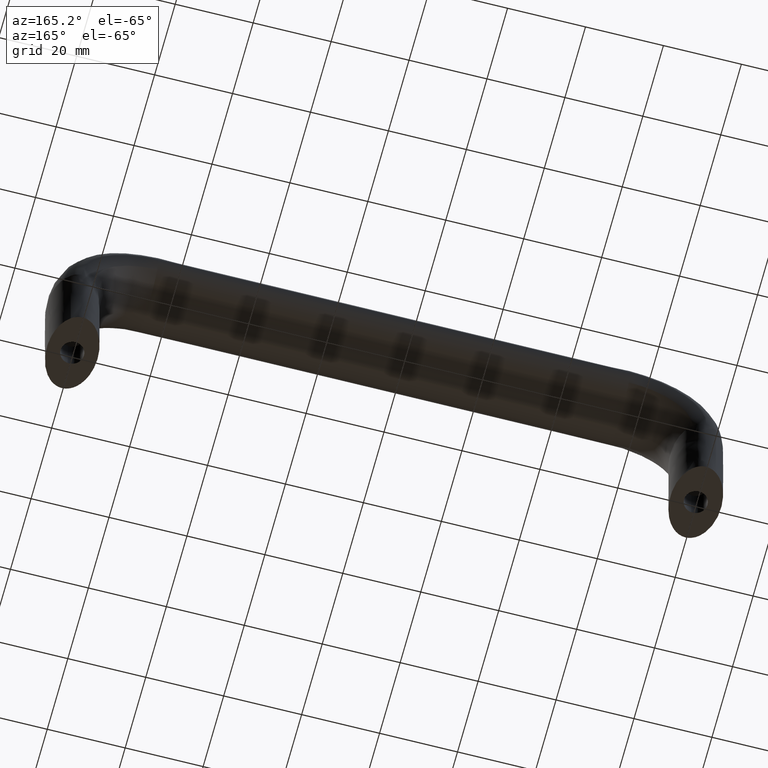
[diagram: clean part render]
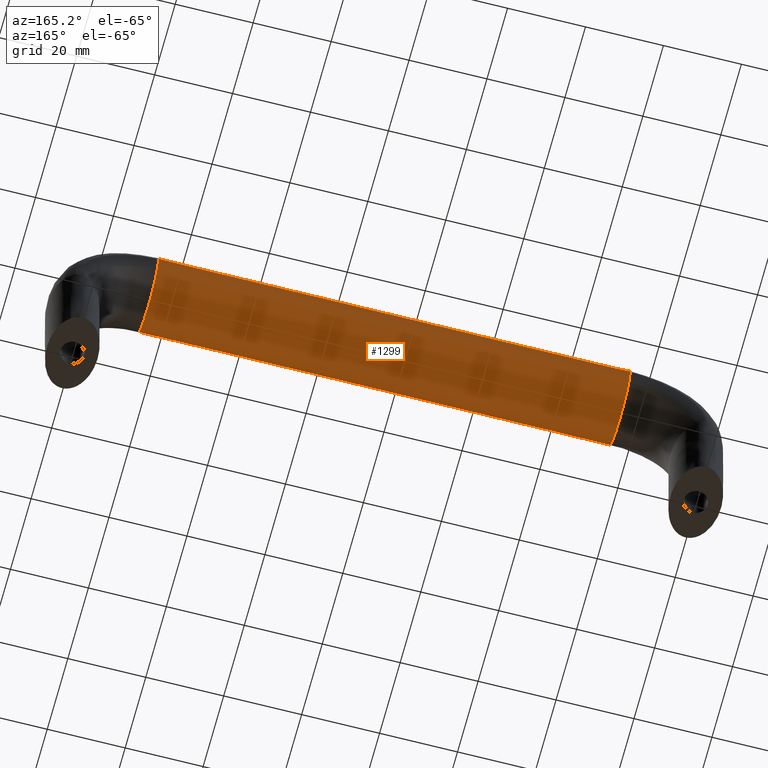
[diagram: same view with one face highlighted and labeled with its STEP entity id]
A machine part, auxiliary view. The second image highlights one B-rep face of the part: STEP entity #1299.
In plain terms, the highlighted face is a freeform B-spline surface patch.
Its self-contained STEP definition (entity closure, byte-faithful):
#750=CARTESIAN_POINT('',(140.500007000000010,8.755444309404465,41.370790612720363));
#751=VERTEX_POINT('',#750);
#765=CARTESIAN_POINT('',(140.500007000000010,10.0,44.500007999999852));
#766=VERTEX_POINT('',#765);
#767=CARTESIAN_POINT('',(140.500007000000010,8.755444309404465,41.370790612720363));
#768=CARTESIAN_POINT('',(140.500007000000010,9.558561397163913,42.326129193318721));
#769=CARTESIAN_POINT('',(140.500007000000010,10.0,43.410922546728408));
#770=CARTESIAN_POINT('',(140.500007000000010,10.0,44.500007999999852));
#771=B_SPLINE_CURVE_WITH_KNOTS('',3,(#767,#768,#769,#770),.UNSPECIFIED.,.F.,.U.,(4,4),(0.419999999998017,0.500000000000000),.UNSPECIFIED.);
#772=EDGE_CURVE('',#751,#766,#771,.T.);
#774=CARTESIAN_POINT('',(140.500007000000010,9.039503756675209,47.265149685667708));
#775=VERTEX_POINT('',#774);
#776=CARTESIAN_POINT('',(140.500007000000010,10.0,44.500007999999852));
#777=CARTESIAN_POINT('',(140.500007000000010,10.0,45.452957771797188));
#778=CARTESIAN_POINT('',(140.500007000000010,9.662023569572522,46.402621404636598));
#779=CARTESIAN_POINT('',(140.500007000000010,9.039503756675209,47.265149685667708));
#780=B_SPLINE_CURVE_WITH_KNOTS('',3,(#776,#777,#778,#779),.UNSPECIFIED.,.F.,.U.,(4,4),(0.500000000000000,0.570000000015311),.UNSPECIFIED.);
#781=EDGE_CURVE('',#766,#775,#780,.T.);
#783=CARTESIAN_POINT('',(140.500007000000010,-10.0,44.500007999999852));
#784=VERTEX_POINT('',#783);
#891=CARTESIAN_POINT('',(140.500007000000010,-10.0,44.500007999999852));
#892=CARTESIAN_POINT('',(140.500007000000010,-10.0,42.798311979305403));
#893=CARTESIAN_POINT('',(140.500007000000010,-8.922269036098131,41.107094718038553));
#894=CARTESIAN_POINT('',(140.500007000000010,-5.219866587632820,38.700533126536087));
#895=CARTESIAN_POINT('',(140.500007000000010,-2.617993877991495,38.000007999999852));
#896=CARTESIAN_POINT('',(140.500007000000010,2.617993877991495,38.000007999999852));
#897=CARTESIAN_POINT('',(140.500007000000010,5.219866587632830,38.700533126536087));
#898=CARTESIAN_POINT('',(140.500007000000010,7.737500252559872,40.336995008738683));
#899=CARTESIAN_POINT('',(140.500007000000010,8.303690947524229,40.833412661115283));
#900=CARTESIAN_POINT('',(140.500007000000010,8.755444309404465,41.370790612720363));
#901=B_SPLINE_CURVE_WITH_KNOTS('',3,(#891,#892,#893,#894,#895,#896,#897,#898,#899,#900),.UNSPECIFIED.,.F.,.U.,(4,2,2,2,4),(0.0,0.125000000000000,0.250000000000000,0.375000000000000,0.419999999998017),.UNSPECIFIED.);
#902=EDGE_CURVE('',#784,#751,#901,.T.);
#982=CARTESIAN_POINT('',(19.500000000000000,9.039503756675209,47.265141685667807));
#983=VERTEX_POINT('',#982);
#984=CARTESIAN_POINT('',(19.500000000000000,9.039503756675209,47.265141685667807));
#985=CARTESIAN_POINT('',(22.020797964139032,9.039503756879462,47.274604278912413));
#986=CARTESIAN_POINT('',(24.541666958346301,9.039503756879462,47.265149685384714));
#987=CARTESIAN_POINT('',(29.583333916653761,9.039503756879462,47.265149685384714));
#988=CARTESIAN_POINT('',(32.104167395828803,9.039503756879462,47.265149685384714));
#989=CARTESIAN_POINT('',(39.666667833342501,9.039503756879462,47.265149685384714));
#990=CARTESIAN_POINT('',(44.708334791657499,9.039503756879462,47.265149685384714));
#991=CARTESIAN_POINT('',(59.833335666684903,9.039503756879462,47.265149685384714));
#992=CARTESIAN_POINT('',(69.916669583390004,9.039503756879462,47.265149685384714));
#993=CARTESIAN_POINT('',(90.083337416610007,9.039503756879462,47.265149685384714));
#994=CARTESIAN_POINT('',(100.166671333465000,9.039503756879462,47.265149685384714));
#995=CARTESIAN_POINT('',(115.291672208267600,9.039503756879462,47.265149685384714));
#996=CARTESIAN_POINT('',(120.333339166627600,9.039503756879462,47.265149685384714));
#997=CARTESIAN_POINT('',(127.895839604186190,9.039503756879462,47.265149685384714));
#998=CARTESIAN_POINT('',(130.416673083313810,9.039503756879462,47.265149685384714));
#999=CARTESIAN_POINT('',(135.458340041686200,9.039503756879462,47.265149685384714));
#1000=CARTESIAN_POINT('',(137.979209089564510,9.039503756879462,47.274612278710521));
#1001=CARTESIAN_POINT('',(140.500007000000010,9.039503756675209,47.265149685667708));
#1002=B_SPLINE_CURVE_WITH_KNOTS('',3,(#984,#985,#986,#987,#988,#989,#990,#991,#992,#993,#994,#995,#996,#997,#998,#999,#1000,#1001),.UNSPECIFIED.,.F.,.U.,(4,2,2,2,2,2,2,2,4),(0.239517237523622,0.272077582833169,0.304637928142717,0.369758618761811,0.500000000000000,0.630241381238189,0.695362071857284,0.727922417166831,0.760482762476378),.UNSPECIFIED.);
#1003=EDGE_CURVE('',#983,#775,#1002,.T.);
#1005=CARTESIAN_POINT('',(19.500000000000000,-10.0,44.499999999999950));
#1006=VERTEX_POINT('',#1005);
#1020=CARTESIAN_POINT('',(19.500000000000000,-10.0,44.499999999999950));
#1021=CARTESIAN_POINT('',(22.020792714456480,-10.0,44.510134661153558));
#1022=CARTESIAN_POINT('',(24.541666958346301,-10.0,44.500007999999852));
#1023=CARTESIAN_POINT('',(29.583333916653750,-10.0,44.500007999999852));
#1024=CARTESIAN_POINT('',(32.104167395828803,-10.0,44.500007999999852));
#1025=CARTESIAN_POINT('',(39.666667833342501,-10.0,44.500007999999852));
#1026=CARTESIAN_POINT('',(44.708334791657499,-10.0,44.500007999999852));
#1027=CARTESIAN_POINT('',(59.833335666684903,-10.0,44.500007999999852));
#1028=CARTESIAN_POINT('',(69.916669583390004,-10.0,44.500007999999852));
#1029=CARTESIAN_POINT('',(90.083337416610007,-10.0,44.500007999999852));
#1030=CARTESIAN_POINT('',(100.166671333465000,-10.0,44.500007999999852));
#1031=CARTESIAN_POINT('',(115.291672208267600,-10.0,44.500007999999852));
#1032=CARTESIAN_POINT('',(120.333339166627600,-10.0,44.500007999999852));
#1033=CARTESIAN_POINT('',(127.895839604186190,-10.0,44.500007999999852));
#1034=CARTESIAN_POINT('',(130.416673083313810,-10.0,44.500007999999852));
#1035=CARTESIAN_POINT('',(135.458340041686200,-10.0,44.500007999999852));
#1036=CARTESIAN_POINT('',(137.979214343062890,-10.0,44.510142660921787));
#1037=CARTESIAN_POINT('',(140.500007000000010,-10.0,44.500007999999852));
#1038=B_SPLINE_CURVE_WITH_KNOTS('',3,(#1020,#1021,#1022,#1023,#1024,#1025,#1026,#1027,#1028,#1029,#1030,#1031,#1032,#1033,#1034,#1035,#1036,#1037),.UNSPECIFIED.,.F.,.U.,(4,2,2,2,2,2,2,2,4),(0.239517237523622,0.272077582833169,0.304637928142717,0.369758618761811,0.500000000000000,0.630241381238189,0.695362071857284,0.727922417166831,0.760482762476378),.UNSPECIFIED.);
#1039=EDGE_CURVE('',#1006,#784,#1038,.T.);
#1044=CARTESIAN_POINT('',(19.500000000000000,-10.0,44.499999999999950));
#1045=CARTESIAN_POINT('',(19.500000000000000,-10.0,42.798303979305501));
#1046=CARTESIAN_POINT('',(19.500000000000000,-8.922269036098131,41.107086718038651));
#1047=CARTESIAN_POINT('',(19.500000000000000,-5.219866587632820,38.700525126536199));
#1048=CARTESIAN_POINT('',(19.500000000000000,-2.617993877991495,38.0));
#1049=CARTESIAN_POINT('',(19.500000000000000,2.617993877991495,38.0));
#1050=CARTESIAN_POINT('',(19.500000000000000,5.219866587632830,38.700525126536199));
#1051=CARTESIAN_POINT('',(19.500000000000000,8.922269036098131,41.107086718038651));
#1052=CARTESIAN_POINT('',(19.500000000000000,10.0,42.798303979305501));
#1053=CARTESIAN_POINT('',(19.500000000000000,10.0,45.452949771588841));
#1054=CARTESIAN_POINT('',(19.500000000000000,9.662023569720375,46.402613404221249));
#1055=CARTESIAN_POINT('',(19.500000000000000,9.039503756879462,47.265141685384812));
#1056=CARTESIAN_POINT('',(22.020792714456480,-10.0,44.510134661153558));
#1057=CARTESIAN_POINT('',(22.020789183956449,-10.0,42.808878013987297));
#1058=CARTESIAN_POINT('',(22.020784900336100,-8.922269036098131,41.118159895065801));
#1059=CARTESIAN_POINT('',(22.020777641944150,-5.219866587632820,38.712396230517449));
#1060=CARTESIAN_POINT('',(22.020775220870551,-2.617993877991495,38.012125576242198));
#1061=CARTESIAN_POINT('',(22.020775220870551,2.617993877991495,38.012125576242198));
#1062=CARTESIAN_POINT('',(22.020777641944051,5.219866587632830,38.712396230527737));
#1063=CARTESIAN_POINT('',(22.020784900336150,8.922269036098131,41.118159895056202));
#1064=CARTESIAN_POINT('',(22.020789183956449,10.0,42.808878013987297));
#1065=CARTESIAN_POINT('',(22.020794691536491,10.0,45.462838383566663));
#1066=CARTESIAN_POINT('',(22.020796469201560,9.662023569720375,46.412273271569738));
#1067=CARTESIAN_POINT('',(22.020797964139032,9.039503756879462,47.274604278912413));
#1068=CARTESIAN_POINT('',(24.541666958346301,-10.0,44.500007999999852));
#1069=CARTESIAN_POINT('',(24.541666958346301,-10.0,42.798311979305403));
#1070=CARTESIAN_POINT('',(24.541666958346301,-8.922269036098131,41.107094718038553));
#1071=CARTESIAN_POINT('',(24.541666958346301,-5.219866587632820,38.700533126536087));
#1072=CARTESIAN_POINT('',(24.541666958346301,-2.617993877991495,38.000007999999852));
#1073=CARTESIAN_POINT('',(24.541666958346301,2.617993877991495,38.000007999999852));
#1074=CARTESIAN_POINT('',(24.541666958346301,5.219866587632830,38.700533126536087));
#1075=CARTESIAN_POINT('',(24.541666958346301,8.922269036098131,41.107094718038553));
#1076=CARTESIAN_POINT('',(24.541666958346301,10.0,42.798311979305403));
#1077=CARTESIAN_POINT('',(24.541666958346301,10.0,45.452957771588743));
#1078=CARTESIAN_POINT('',(24.541666958346301,9.662023569720375,46.402621404221158));
#1079=CARTESIAN_POINT('',(24.541666958346301,9.039503756879462,47.265149685384714));
#1080=CARTESIAN_POINT('',(29.583333916653750,-10.0,44.500007999999852));
#1081=CARTESIAN_POINT('',(29.583333916653750,-10.0,42.798311979305403));
#1082=CARTESIAN_POINT('',(29.583333916653750,-8.922269036098131,41.107094718038553));
#1083=CARTESIAN_POINT('',(29.583333916653750,-5.219866587632820,38.700533126536087));
#1084=CARTESIAN_POINT('',(29.583333916653750,-2.617993877991495,38.000007999999852));
#1085=CARTESIAN_POINT('',(29.583333916653750,2.617993877991495,38.000007999999852));
#1086=CARTESIAN_POINT('',(29.583333916653750,5.219866587632830,38.700533126536087));
#1087=CARTESIAN_POINT('',(29.583333916653750,8.922269036098131,41.107094718038553));
#1088=CARTESIAN_POINT('',(29.583333916653750,10.0,42.798311979305403));
#1089=CARTESIAN_POINT('',(29.583333916653750,10.0,45.452957771588743));
#1090=CARTESIAN_POINT('',(29.583333916653761,9.662023569720375,46.402621404221158));
#1091=CARTESIAN_POINT('',(29.583333916653761,9.039503756879462,47.265149685384714));
#1092=CARTESIAN_POINT('',(32.104167395828803,-10.0,44.500007999999852));
#1093=CARTESIAN_POINT('',(32.104167395828803,-10.0,42.798311979305403));
#1094=CARTESIAN_POINT('',(32.104167395828803,-8.922269036098131,41.107094718038553));
#1095=CARTESIAN_POINT('',(32.104167395828803,-5.219866587632820,38.700533126536087));
#1096=CARTESIAN_POINT('',(32.104167395828803,-2.617993877991495,38.000007999999852));
#1097=CARTESIAN_POINT('',(32.104167395828803,2.617993877991495,38.000007999999852));
#1098=CARTESIAN_POINT('',(32.104167395828803,5.219866587632830,38.700533126536087));
#1099=CARTESIAN_POINT('',(32.104167395828803,8.922269036098131,41.107094718038553));
#1100=CARTESIAN_POINT('',(32.104167395828803,10.0,42.798311979305403));
#1101=CARTESIAN_POINT('',(32.104167395828803,10.0,45.452957771588743));
#1102=CARTESIAN_POINT('',(32.104167395828803,9.662023569720375,46.402621404221158));
#1103=CARTESIAN_POINT('',(32.104167395828803,9.039503756879462,47.265149685384714));
#1104=CARTESIAN_POINT('',(39.666667833342501,-10.0,44.500007999999852));
#1105=CARTESIAN_POINT('',(39.666667833342501,-10.0,42.798311979305403));
#1106=CARTESIAN_POINT('',(39.666667833342501,-8.922269036098131,41.107094718038553));
#1107=CARTESIAN_POINT('',(39.666667833342501,-5.219866587632820,38.700533126536087));
#1108=CARTESIAN_POINT('',(39.666667833342501,-2.617993877991495,38.000007999999852));
#1109=CARTESIAN_POINT('',(39.666667833342501,2.617993877991495,38.000007999999852));
#1110=CARTESIAN_POINT('',(39.666667833342501,5.219866587632830,38.700533126536087));
#1111=CARTESIAN_POINT('',(39.666667833342501,8.922269036098131,41.107094718038553));
#1112=CARTESIAN_POINT('',(39.666667833342501,10.0,42.798311979305403));
#1113=CARTESIAN_POINT('',(39.666667833342501,10.0,45.452957771588743));
#1114=CARTESIAN_POINT('',(39.666667833342501,9.662023569720375,46.402621404221158));
#1115=CARTESIAN_POINT('',(39.666667833342501,9.039503756879462,47.265149685384714));
#1116=CARTESIAN_POINT('',(44.708334791657499,-10.0,44.500007999999852));
#1117=CARTESIAN_POINT('',(44.708334791657499,-10.0,42.798311979305403));
#1118=CARTESIAN_POINT('',(44.708334791657499,-8.922269036098131,41.107094718038553));
#1119=CARTESIAN_POINT('',(44.708334791657499,-5.219866587632820,38.700533126536087));
#1120=CARTESIAN_POINT('',(44.708334791657499,-2.617993877991495,38.000007999999852));
#1121=CARTESIAN_POINT('',(44.708334791657499,2.617993877991495,38.000007999999852));
#1122=CARTESIAN_POINT('',(44.708334791657499,5.219866587632830,38.700533126536087));
#1123=CARTESIAN_POINT('',(44.708334791657499,8.922269036098131,41.107094718038553));
#1124=CARTESIAN_POINT('',(44.708334791657499,10.0,42.798311979305403));
#1125=CARTESIAN_POINT('',(44.708334791657499,10.0,45.452957771588743));
#1126=CARTESIAN_POINT('',(44.708334791657499,9.662023569720375,46.402621404221158));
#1127=CARTESIAN_POINT('',(44.708334791657492,9.039503756879462,47.265149685384714));
#1128=CARTESIAN_POINT('',(59.833335666684903,-10.0,44.500007999999852));
#1129=CARTESIAN_POINT('',(59.833335666684903,-10.0,42.798311979305403));
#1130=CARTESIAN_POINT('',(59.833335666684903,-8.922269036098131,41.107094718038553));
#1131=CARTESIAN_POINT('',(59.833335666684903,-5.219866587632820,38.700533126536087));
#1132=CARTESIAN_POINT('',(59.833335666684903,-2.617993877991495,38.000007999999852));
#1133=CARTESIAN_POINT('',(59.833335666684903,2.617993877991495,38.000007999999852));
#1134=CARTESIAN_POINT('',(59.833335666684903,5.219866587632830,38.700533126536087));
#1135=CARTESIAN_POINT('',(59.833335666684903,8.922269036098131,41.107094718038553));
#1136=CARTESIAN_POINT('',(59.833335666684903,10.0,42.798311979305403));
#1137=CARTESIAN_POINT('',(59.833335666684903,10.0,45.452957771588743));
#1138=CARTESIAN_POINT('',(59.833335666684903,9.662023569720375,46.402621404221158));
#1139=CARTESIAN_POINT('',(59.833335666684903,9.039503756879462,47.265149685384714));
#1140=CARTESIAN_POINT('',(69.916669583390004,-10.0,44.500007999999852));
#1141=CARTESIAN_POINT('',(69.916669583390004,-10.0,42.798311979305403));
#1142=CARTESIAN_POINT('',(69.916669583390004,-8.922269036098131,41.107094718038553));
#1143=CARTESIAN_POINT('',(69.916669583390004,-5.219866587632820,38.700533126536087));
#1144=CARTESIAN_POINT('',(69.916669583390004,-2.617993877991495,38.000007999999852));
#1145=CARTESIAN_POINT('',(69.916669583390004,2.617993877991495,38.000007999999852));
#1146=CARTESIAN_POINT('',(69.916669583390004,5.219866587632830,38.700533126536087));
#1147=CARTESIAN_POINT('',(69.916669583390004,8.922269036098131,41.107094718038553));
#1148=CARTESIAN_POINT('',(69.916669583390004,10.0,42.798311979305403));
#1149=CARTESIAN_POINT('',(69.916669583390004,10.0,45.452957771588743));
#1150=CARTESIAN_POINT('',(69.916669583390004,9.662023569720375,46.402621404221158));
#1151=CARTESIAN_POINT('',(69.916669583390004,9.039503756879462,47.265149685384714));
#1152=CARTESIAN_POINT('',(90.083337416610007,-10.0,44.500007999999852));
#1153=CARTESIAN_POINT('',(90.083337416610007,-10.0,42.798311979305403));
#1154=CARTESIAN_POINT('',(90.083337416610007,-8.922269036098131,41.107094718038553));
#1155=CARTESIAN_POINT('',(90.083337416610007,-5.219866587632820,38.700533126536087));
#1156=CARTESIAN_POINT('',(90.083337416610007,-2.617993877991495,38.000007999999852));
#1157=CARTESIAN_POINT('',(90.083337416610007,2.617993877991495,38.000007999999852));
#1158=CARTESIAN_POINT('',(90.083337416610007,5.219866587632830,38.700533126536087));
#1159=CARTESIAN_POINT('',(90.083337416610007,8.922269036098131,41.107094718038553));
#1160=CARTESIAN_POINT('',(90.083337416610007,10.0,42.798311979305403));
#1161=CARTESIAN_POINT('',(90.083337416610007,10.0,45.452957771588743));
#1162=CARTESIAN_POINT('',(90.083337416610007,9.662023569720375,46.402621404221158));
#1163=CARTESIAN_POINT('',(90.083337416609993,9.039503756879462,47.265149685384714));
#1164=CARTESIAN_POINT('',(100.166671333465000,-10.0,44.500007999999852));
#1165=CARTESIAN_POINT('',(100.166671333465000,-10.0,42.798311979305403));
#1166=CARTESIAN_POINT('',(100.166671333465000,-8.922269036098131,41.107094718038553));
#1167=CARTESIAN_POINT('',(100.166671333465000,-5.219866587632820,38.700533126536087));
#1168=CARTESIAN_POINT('',(100.166671333465000,-2.617993877991495,38.000007999999852));
#1169=CARTESIAN_POINT('',(100.166671333465000,2.617993877991495,38.000007999999852));
#1170=CARTESIAN_POINT('',(100.166671333465000,5.219866587632830,38.700533126536087));
#1171=CARTESIAN_POINT('',(100.166671333465000,8.922269036098131,41.107094718038553));
#1172=CARTESIAN_POINT('',(100.166671333465000,10.0,42.798311979305403));
#1173=CARTESIAN_POINT('',(100.166671333465000,10.0,45.452957771588743));
#1174=CARTESIAN_POINT('',(100.166671333465000,9.662023569720375,46.402621404221158));
#1175=CARTESIAN_POINT('',(100.166671333465000,9.039503756879462,47.265149685384714));
#1176=CARTESIAN_POINT('',(115.291672208267600,-10.0,44.500007999999852));
#1177=CARTESIAN_POINT('',(115.291672208267600,-10.0,42.798311979305403));
#1178=CARTESIAN_POINT('',(115.291672208267600,-8.922269036098131,41.107094718038553));
#1179=CARTESIAN_POINT('',(115.291672208267600,-5.219866587632820,38.700533126536087));
#1180=CARTESIAN_POINT('',(115.291672208267600,-2.617993877991495,38.000007999999852));
#1181=CARTESIAN_POINT('',(115.291672208267600,2.617993877991495,38.000007999999852));
#1182=CARTESIAN_POINT('',(115.291672208267600,5.219866587632830,38.700533126536087));
#1183=CARTESIAN_POINT('',(115.291672208267600,8.922269036098131,41.107094718038553));
#1184=CARTESIAN_POINT('',(115.291672208267600,10.0,42.798311979305403));
#1185=CARTESIAN_POINT('',(115.291672208267600,10.0,45.452957771588743));
#1186=CARTESIAN_POINT('',(115.291672208267600,9.662023569720375,46.402621404221158));
#1187=CARTESIAN_POINT('',(115.291672208267600,9.039503756879462,47.265149685384714));
#1188=CARTESIAN_POINT('',(120.333339166627600,-10.0,44.500007999999852));
#1189=CARTESIAN_POINT('',(120.333339166627600,-10.0,42.798311979305403));
#1190=CARTESIAN_POINT('',(120.333339166627600,-8.922269036098131,41.107094718038553));
#1191=CARTESIAN_POINT('',(120.333339166627600,-5.219866587632820,38.700533126536087));
#1192=CARTESIAN_POINT('',(120.333339166627600,-2.617993877991495,38.000007999999852));
#1193=CARTESIAN_POINT('',(120.333339166627600,2.617993877991495,38.000007999999852));
#1194=CARTESIAN_POINT('',(120.333339166627600,5.219866587632830,38.700533126536087));
#1195=CARTESIAN_POINT('',(120.333339166627600,8.922269036098131,41.107094718038553));
#1196=CARTESIAN_POINT('',(120.333339166627600,10.0,42.798311979305403));
#1197=CARTESIAN_POINT('',(120.333339166627600,10.0,45.452957771588743));
#1198=CARTESIAN_POINT('',(120.333339166627600,9.662023569720375,46.402621404221158));
#1199=CARTESIAN_POINT('',(120.333339166627600,9.039503756879462,47.265149685384714));
#1200=CARTESIAN_POINT('',(127.895839604186190,-10.0,44.500007999999852));
#1201=CARTESIAN_POINT('',(127.895839604186190,-10.0,42.798311979305403));
#1202=CARTESIAN_POINT('',(127.895839604186190,-8.922269036098131,41.107094718038553));
#1203=CARTESIAN_POINT('',(127.895839604186190,-5.219866587632820,38.700533126536087));
#1204=CARTESIAN_POINT('',(127.895839604186190,-2.617993877991495,38.000007999999852));
#1205=CARTESIAN_POINT('',(127.895839604186190,2.617993877991495,38.000007999999852));
#1206=CARTESIAN_POINT('',(127.895839604186190,5.219866587632830,38.700533126536087));
#1207=CARTESIAN_POINT('',(127.895839604186190,8.922269036098131,41.107094718038553));
#1208=CARTESIAN_POINT('',(127.895839604186190,10.0,42.798311979305403));
#1209=CARTESIAN_POINT('',(127.895839604186190,10.0,45.452957771588743));
#1210=CARTESIAN_POINT('',(127.895839604186190,9.662023569720375,46.402621404221158));
#1211=CARTESIAN_POINT('',(127.895839604186190,9.039503756879462,47.265149685384714));
#1212=CARTESIAN_POINT('',(130.416673083313810,-10.0,44.500007999999852));
#1213=CARTESIAN_POINT('',(130.416673083313810,-10.0,42.798311979305403));
#1214=CARTESIAN_POINT('',(130.416673083313810,-8.922269036098131,41.107094718038553));
#1215=CARTESIAN_POINT('',(130.416673083313810,-5.219866587632820,38.700533126536087));
#1216=CARTESIAN_POINT('',(130.416673083313810,-2.617993877991495,38.000007999999852));
#1217=CARTESIAN_POINT('',(130.416673083313810,2.617993877991495,38.000007999999852));
#1218=CARTESIAN_POINT('',(130.416673083313810,5.219866587632830,38.700533126536087));
#1219=CARTESIAN_POINT('',(130.416673083313810,8.922269036098131,41.107094718038553));
#1220=CARTESIAN_POINT('',(130.416673083313810,10.0,42.798311979305403));
#1221=CARTESIAN_POINT('',(130.416673083313810,10.0,45.452957771588743));
#1222=CARTESIAN_POINT('',(130.416673083313810,9.662023569720375,46.402621404221158));
#1223=CARTESIAN_POINT('',(130.416673083313810,9.039503756879462,47.265149685384714));
#1224=CARTESIAN_POINT('',(135.458340041686200,-10.0,44.500007999999852));
#1225=CARTESIAN_POINT('',(135.458340041686200,-10.0,42.798311979305403));
#1226=CARTESIAN_POINT('',(135.458340041686200,-8.922269036098131,41.107094718038553));
#1227=CARTESIAN_POINT('',(135.458340041686200,-5.219866587632820,38.700533126536087));
#1228=CARTESIAN_POINT('',(135.458340041686200,-2.617993877991495,38.000007999999852));
#1229=CARTESIAN_POINT('',(135.458340041686200,2.617993877991495,38.000007999999852));
#1230=CARTESIAN_POINT('',(135.458340041686200,5.219866587632830,38.700533126536087));
#1231=CARTESIAN_POINT('',(135.458340041686200,8.922269036098131,41.107094718038553));
#1232=CARTESIAN_POINT('',(135.458340041686200,10.0,42.798311979305403));
#1233=CARTESIAN_POINT('',(135.458340041686200,10.0,45.452957771588743));
#1234=CARTESIAN_POINT('',(135.458340041686200,9.662023569720375,46.402621404221158));
#1235=CARTESIAN_POINT('',(135.458340041686200,9.039503756879462,47.265149685384714));
#1236=CARTESIAN_POINT('',(137.979214343062890,-10.0,44.510142660921787));
#1237=CARTESIAN_POINT('',(137.979217876057590,-10.0,42.808886013735503));
#1238=CARTESIAN_POINT('',(137.979222162512000,-8.922269036098131,41.118167894789700));
#1239=CARTESIAN_POINT('',(137.979229425434600,-5.219866587632820,38.712404230200100));
#1240=CARTESIAN_POINT('',(137.979231847953000,-2.617993877991495,38.012133575911157));
#1241=CARTESIAN_POINT('',(137.979231847953000,2.617993877991495,38.012133575911157));
#1242=CARTESIAN_POINT('',(137.979229425434800,5.219866587632830,38.712404230210403));
#1243=CARTESIAN_POINT('',(137.979222162512000,8.922269036098131,41.118167894780100));
#1244=CARTESIAN_POINT('',(137.979217876057590,10.0,42.808886013735503));
#1245=CARTESIAN_POINT('',(137.979212364585890,10.0,45.462846383346118));
#1246=CARTESIAN_POINT('',(137.979210585622010,9.662023569720375,46.412281271359333));
#1247=CARTESIAN_POINT('',(137.979209089564510,9.039503756879462,47.274612278710521));
#1248=CARTESIAN_POINT('',(140.500007000000010,-10.0,44.500007999999852));
#1249=CARTESIAN_POINT('',(140.500007000000010,-10.0,42.798311979305403));
#1250=CARTESIAN_POINT('',(140.500007000000010,-8.922269036098131,41.107094718038553));
#1251=CARTESIAN_POINT('',(140.500007000000010,-5.219866587632820,38.700533126536087));
#1252=CARTESIAN_POINT('',(140.500007000000010,-2.617993877991495,38.000007999999852));
#1253=CARTESIAN_POINT('',(140.500007000000010,2.617993877991495,38.000007999999852));
#1254=CARTESIAN_POINT('',(140.500007000000010,5.219866587632830,38.700533126536087));
#1255=CARTESIAN_POINT('',(140.500007000000010,8.922269036098131,41.107094718038553));
#1256=CARTESIAN_POINT('',(140.500007000000010,10.0,42.798311979305403));
#1257=CARTESIAN_POINT('',(140.500007000000010,10.0,45.452957771588743));
#1258=CARTESIAN_POINT('',(140.500007000000010,9.662023569720375,46.402621404221158));
#1259=CARTESIAN_POINT('',(140.500007000000010,9.039503756879462,47.265149685384714));
#1260=B_SPLINE_SURFACE_WITH_KNOTS('',3,3,((#1044,#1056,#1068,#1080,#1092,#1104,#1116,#1128,#1140,#1152,#1164,#1176,#1188,#1200,#1212,#1224,#1236,#1248),(#1045,#1057,#1069,#1081,#1093,#1105,#1117,#1129,#1141,#1153,#1165,#1177,#1189,#1201,#1213,#1225,#1237,#1249),(#1046,#1058,#1070,#1082,#1094,#1106,#1118,#1130,#1142,#1154,#1166,#1178,#1190,#1202,#1214,#1226,#1238,#1250),(#1047,#1059,#1071,#1083,#1095,#1107,#1119,#1131,#1143,#1155,#1167,#1179,#1191,#1203,#1215,#1227,#1239,#1251),(#1048,#1060,#1072,#1084,#1096,#1108,#1120,#1132,#1144,#1156,#1168,#1180,#1192,#1204,#1216,#1228,#1240,#1252),(#1049,#1061,#1073,#1085,#1097,#1109,#1121,#1133,#1145,#1157,#1169,#1181,#1193,#1205,#1217,#1229,#1241,#1253),(#1050,#1062,#1074,#1086,#1098,#1110,#1122,#1134,#1146,#1158,#1170,#1182,#1194,#1206,#1218,#1230,#1242,#1254),(#1051,#1063,#1075,#1087,#1099,#1111,#1123,#1135,#1147,#1159,#1171,#1183,#1195,#1207,#1219,#1231,#1243,#1255),(#1052,#1064,#1076,#1088,#1100,#1112,#1124,#1136,#1148,#1160,#1172,#1184,#1196,#1208,#1220,#1232,#1244,#1256),(#1053,#1065,#1077,#1089,#1101,#1113,#1125,#1137,#1149,#1161,#1173,#1185,#1197,#1209,#1221,#1233,#1245,#1257),(#1054,#1066,#1078,#1090,#1102,#1114,#1126,#1138,#1150,#1162,#1174,#1186,#1198,#1210,#1222,#1234,#1246,#1258),(#1055,#1067,#1079,#1091,#1103,#1115,#1127,#1139,#1151,#1163,#1175,#1187,#1199,#1211,#1223,#1235,#1247,#1259)),.UNSPECIFIED.,.F.,.F.,.U.,(4,2,2,2,2,4),(4,2,2,2,2,2,2,2,4),(0.0,7.693621656700124,15.387243313400250,23.080864970100372,30.774486626800499,35.082914754552561),(0.0,7.562567593902767,15.125135187805670,30.250270375611340,60.500540751222687,90.750811126834037,105.875946314639800,113.438513908542600,121.001081502445400),.UNSPECIFIED.);
#1261=ORIENTED_EDGE('',*,*,#781,.F.);
#1262=ORIENTED_EDGE('',*,*,#772,.F.);
#1263=ORIENTED_EDGE('',*,*,#902,.F.);
#1264=ORIENTED_EDGE('',*,*,#1039,.F.);
#1265=CARTESIAN_POINT('',(19.500000000000000,8.755444309404467,41.370782612720461));
#1266=VERTEX_POINT('',#1265);
#1267=CARTESIAN_POINT('',(19.500000000000000,-10.0,44.499999999999950));
#1268=CARTESIAN_POINT('',(19.500000000000000,-10.0,42.798303979305501));
#1269=CARTESIAN_POINT('',(19.500000000000000,-8.922269036098131,41.107086718038651));
#1270=CARTESIAN_POINT('',(19.500000000000000,-5.219866587632820,38.700525126536199));
#1271=CARTESIAN_POINT('',(19.500000000000000,-2.617993877991495,38.0));
#1272=CARTESIAN_POINT('',(19.500000000000000,2.617993877991495,38.0));
#1273=CARTESIAN_POINT('',(19.500000000000000,5.219866587632830,38.700525126536199));
#1274=CARTESIAN_POINT('',(19.500000000000000,7.737500252559873,40.336987008738781));
#1275=CARTESIAN_POINT('',(19.500000000000000,8.303690947524231,40.833404661115388));
#1276=CARTESIAN_POINT('',(19.500000000000000,8.755444309404467,41.370782612720461));
#1277=B_SPLINE_CURVE_WITH_KNOTS('',3,(#1267,#1268,#1269,#1270,#1271,#1272,#1273,#1274,#1275,#1276),.UNSPECIFIED.,.F.,.U.,(4,2,2,2,4),(0.0,0.125000000000000,0.250000000000000,0.375000000000000,0.419999999998018),.UNSPECIFIED.);
#1278=EDGE_CURVE('',#1006,#1266,#1277,.T.);
#1279=ORIENTED_EDGE('',*,*,#1278,.T.);
#1280=CARTESIAN_POINT('',(19.500000000000000,10.0,44.499999999999950));
#1281=VERTEX_POINT('',#1280);
#1282=CARTESIAN_POINT('',(19.500000000000000,8.755444309404467,41.370782612720461));
#1283=CARTESIAN_POINT('',(19.500000000000000,9.558561397163913,42.326121193318833));
#1284=CARTESIAN_POINT('',(19.500000000000000,10.0,43.410914546728513));
#1285=CARTESIAN_POINT('',(19.500000000000000,10.0,44.499999999999950));
#1286=B_SPLINE_CURVE_WITH_KNOTS('',3,(#1282,#1283,#1284,#1285),.UNSPECIFIED.,.F.,.U.,(4,4),(0.419999999998017,0.500000000000000),.UNSPECIFIED.);
#1287=EDGE_CURVE('',#1266,#1281,#1286,.T.);
#1288=ORIENTED_EDGE('',*,*,#1287,.T.);
#1289=CARTESIAN_POINT('',(19.500000000000000,10.0,44.499999999999950));
#1290=CARTESIAN_POINT('',(19.500000000000000,10.0,45.452949771797279));
#1291=CARTESIAN_POINT('',(19.500000000000000,9.662023569572522,46.402613404636703));
#1292=CARTESIAN_POINT('',(19.500000000000000,9.039503756675209,47.265141685667807));
#1293=B_SPLINE_CURVE_WITH_KNOTS('',3,(#1289,#1290,#1291,#1292),.UNSPECIFIED.,.F.,.U.,(4,4),(0.500000000000000,0.570000000015311),.UNSPECIFIED.);
#1294=EDGE_CURVE('',#1281,#983,#1293,.T.);
#1295=ORIENTED_EDGE('',*,*,#1294,.T.);
#1296=ORIENTED_EDGE('',*,*,#1003,.T.);
#1297=EDGE_LOOP('',(#1261,#1262,#1263,#1264,#1279,#1288,#1295,#1296));
#1298=FACE_OUTER_BOUND('',#1297,.T.);
#1299=ADVANCED_FACE('',(#1298),#1260,.T.);